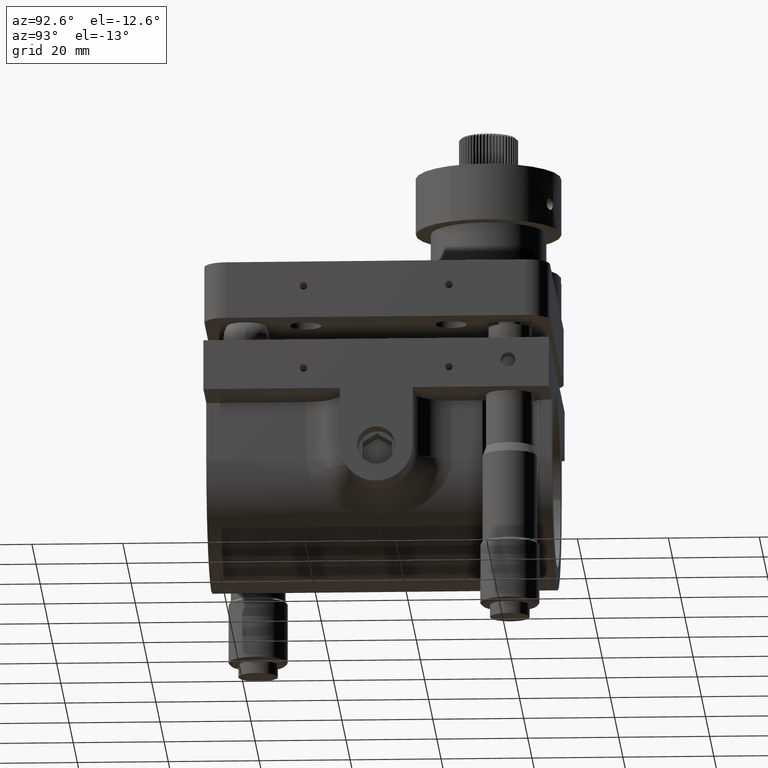
[diagram: clean part render]
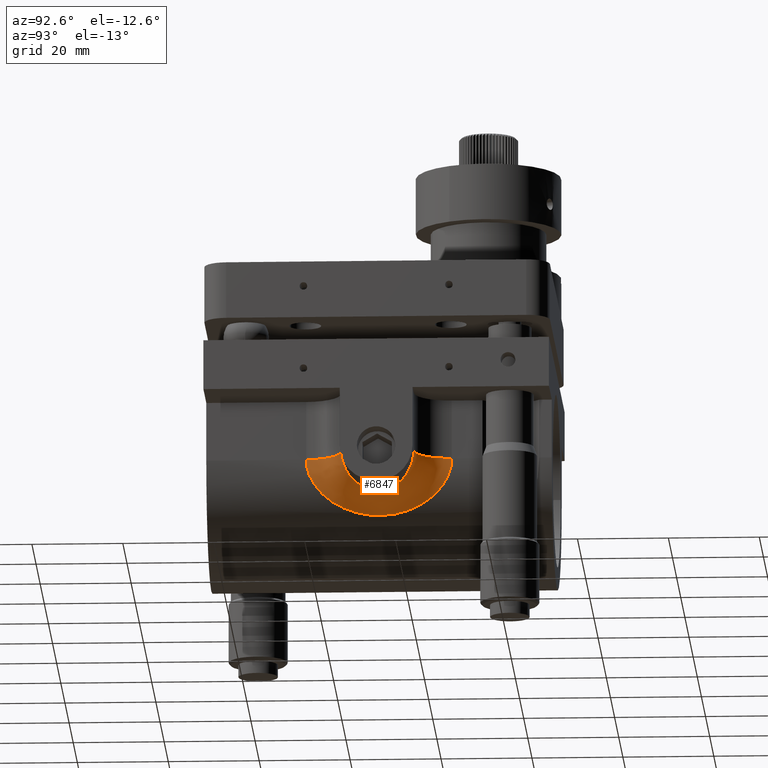
[diagram: same view with one face highlighted and labeled with its STEP entity id]
A machine part, auxiliary view. The second image highlights one B-rep face of the part: STEP entity #6847.
In plain terms, the highlighted face is a freeform B-spline surface patch.
Its self-contained STEP definition (entity closure, byte-faithful):
#44 = CARTESIAN_POINT ( 'NONE',  ( 24.01306153566631000, 264.8895944573932300, -4.057803100075076100 ) ) ;
#83 = CARTESIAN_POINT ( 'NONE',  ( 31.99999999984892800, 263.9999999999996600, -0.5310758604896721500 ) ) ;
#135 = CARTESIAN_POINT ( 'NONE',  ( 23.39751094401368200, 257.6723278714471800, -5.355671307065199100 ) ) ;
#148 = CARTESIAN_POINT ( 'NONE',  ( 23.73710706978753400, 256.7111317712161700, -3.654560114857070600 ) ) ;
#169 = CARTESIAN_POINT ( 'NONE',  ( 23.22836879194399600, 258.1702523871693400, -6.047281768696068500 ) ) ;
#221 = CARTESIAN_POINT ( 'NONE',  ( 23.36824752690086300, 275.7203402896857400, -7.150412890019928200 ) ) ;
#256 = CARTESIAN_POINT ( 'NONE',  ( 21.93414963906136000, 281.3523941967304200, -9.744194787622454600 ) ) ;
#272 = CARTESIAN_POINT ( 'NONE',  ( 23.89152367215780300, 287.7092060954161600, -2.322517795113065100 ) ) ;
#307 = CARTESIAN_POINT ( 'NONE',  ( 23.15517336995351300, 270.2295218657062000, -7.821391730683970400 ) ) ;
#339 = CARTESIAN_POINT ( 'NONE',  ( 27.83600470098490100, 270.6672727706435400, -7.892578517915820800 ) ) ;
#383 = CARTESIAN_POINT ( 'NONE',  ( 27.72840547609204600, 272.5353111724944600, -7.986540797949269100 ) ) ;
#423 = CARTESIAN_POINT ( 'NONE',  ( 22.24303449834400200, 282.5689104746074300, -9.017728167632380800 ) ) ;
#500 = CARTESIAN_POINT ( 'NONE',  ( 30.97434325917999600, 278.9184293934748700, -4.025346995395656400 ) ) ;
#542 = CARTESIAN_POINT ( 'NONE',  ( 23.99012524142229800, 287.9737163725671400, -0.7945491189233868700 ) ) ;
#630 = DIRECTION ( 'NONE',  ( -8.673617379884027600E-016, 1.000000000000000000, -6.062030066289001700E-016 ) ) ;
#641 = CARTESIAN_POINT ( 'NONE',  ( 28.04738653929321000, 274.1741218061471300, -7.703540198099313200 ) ) ;
#645 = CARTESIAN_POINT ( 'NONE',  ( 23.99999999999998600, 288.0000000000001700, 2.775557561562891400E-014 ) ) ;
#681 = CARTESIAN_POINT ( 'NONE',  ( 27.78499366146377600, 270.8677657308708100, -7.938228935281368400 ) ) ;
#874 = CARTESIAN_POINT ( 'NONE',  ( 24.00000000000001800, 256.0000000000001100, -3.469446951953614200E-015 ) ) ;
#877 = CARTESIAN_POINT ( 'NONE',  ( 32.00000000000000000, 280.0000000000001100, -0.5644601517195988500 ) ) ;
#1043 = CARTESIAN_POINT ( 'NONE',  ( 24.00000000004790500, 263.9999999998819400, -0.2651520615603876800 ) ) ;
#1090 = CARTESIAN_POINT ( 'NONE',  ( 23.87449437080051600, 265.5563929645287500, -4.996765265713803700 ) ) ;
#1109 = CARTESIAN_POINT ( 'NONE',  ( 20.82029443025551200, 273.8645150984480100, -11.93879975488708000 ) ) ;
#1133 = CARTESIAN_POINT ( 'NONE',  ( 20.78471095832580300, 271.4554104214819300, -11.99982459952430600 ) ) ;
#1149 = CARTESIAN_POINT ( 'NONE',  ( 20.85579690312848200, 269.6594602145961500, -11.87605443853776800 ) ) ;
#1183 = CARTESIAN_POINT ( 'NONE',  ( 20.87643962248069900, 274.6579495570604200, -11.83986334097386700 ) ) ;
#1222 = CARTESIAN_POINT ( 'NONE',  ( 28.28925042678857300, 274.8507080150946500, -7.479487356280143800 ) ) ;
#1240 = CARTESIAN_POINT ( 'NONE',  ( 23.24011426593751000, 258.1345020776919300, -6.002504560184233300 ) ) ;
#1270 = CARTESIAN_POINT ( 'NONE',  ( 23.10185375536698900, 272.7141362480547900, -7.977481176401447300 ) ) ;
#1286 = CARTESIAN_POINT ( 'NONE',  ( 22.64108358480142200, 283.9863859595395200, -7.988647042950972800 ) ) ;
#1311 = CARTESIAN_POINT ( 'NONE',  ( 20.79630410702486300, 273.0706223449692500, -11.97981119675065500 ) ) ;
#1338 = AXIS2_PLACEMENT_3D ( 'NONE', #2273, #7999, #7085 ) ;
#1432 = CARTESIAN_POINT ( 'NONE',  ( 24.02482960835678900, 279.9974125008727700, -0.6841928028298522900 ) ) ;
#1467 = CARTESIAN_POINT ( 'NONE',  ( 31.19870383596076400, 279.1660282202789200, -3.565967365527042500 ) ) ;
#1513 = CARTESIAN_POINT ( 'NONE',  ( 31.73820363014373000, 279.7354316581272500, -2.109353261060477700 ) ) ;
#1572 = CARTESIAN_POINT ( 'NONE',  ( 31.55390774041700300, 264.4537530699146800, -2.706559038327079200 ) ) ;
#1616 = CARTESIAN_POINT ( 'NONE',  ( 28.64143817955809000, 275.6467944174199800, -7.139374761154702900 ) ) ;
#1655 = CARTESIAN_POINT ( 'NONE',  ( 31.71511189576581900, 264.2881895653761700, -2.198459045999029200 ) ) ;
#1694 = CARTESIAN_POINT ( 'NONE',  ( 29.38870760801278000, 276.9067824415049000, -6.337968074538084200 ) ) ;
#1896 = CARTESIAN_POINT ( 'NONE',  ( 24.09334941512101800, 264.3792917898709900, -2.913233650816920800 ) ) ;
#1938 = CARTESIAN_POINT ( 'NONE',  ( 23.68261980832469100, 256.8634739157651600, -3.908906645327918200 ) ) ;
#1972 = CARTESIAN_POINT ( 'NONE',  ( 24.01434919040731200, 263.9975204259754900, -0.5280935206666933500 ) ) ;
#2013 = CARTESIAN_POINT ( 'NONE',  ( 31.19668125854602200, 264.8361639357501600, -3.570447538006270800 ) ) ;
#2043 = ORIENTED_EDGE ( 'NONE', *, *, #9804, .F. ) ;
#2049 = CARTESIAN_POINT ( 'NONE',  ( 31.94724130099363500, 264.0523594740712400, -1.058263609392223100 ) ) ;
#2069 = CARTESIAN_POINT ( 'NONE',  ( 20.82938730690524700, 270.1215110125057200, -11.92215996556681800 ) ) ;
#2089 = VERTEX_POINT ( 'NONE', #11714 ) ;
#2092 = CARTESIAN_POINT ( 'NONE',  ( 23.15480610191964000, 273.7655545243453000, -7.822486620739467400 ) ) ;
#2107 = CARTESIAN_POINT ( 'NONE',  ( 22.33107253847760600, 261.1066820694016400, -8.797499187681477700 ) ) ;
#2138 = CARTESIAN_POINT ( 'NONE',  ( 22.03329574949419000, 262.2434214273743600, -9.518648959556715600 ) ) ;
#2153 = CARTESIAN_POINT ( 'NONE',  ( 22.43498506555276300, 260.7343846753095700, -8.530047507490298400 ) ) ;
#2176 = CARTESIAN_POINT ( 'NONE',  ( 28.85103606242369900, 267.9675836953728100, -6.928452755392934000 ) ) ;
#2192 = CARTESIAN_POINT ( 'NONE',  ( 23.93228816598228500, 256.1812141965259600, -1.859662173591592800 ) ) ;
#2224 = CARTESIAN_POINT ( 'NONE',  ( 21.01871096074083000, 276.2003279907097500, -11.58581743100195100 ) ) ;
#2256 = CARTESIAN_POINT ( 'NONE',  ( 27.78978735921052500, 273.0670102448432900, -7.933024713569509800 ) ) ;
#2273 = CARTESIAN_POINT ( 'NONE',  ( 32.00000000000004300, 256.0000000000001100, 6.938893903907228400E-015 ) ) ;
#2327 = VERTEX_POINT ( 'NONE', #645 ) ;
#2334 = CARTESIAN_POINT ( 'NONE',  ( 29.38113296090034500, 276.8834591705688700, -6.341865554342026800 ) ) ;
#2379 = CARTESIAN_POINT ( 'NONE',  ( 23.23075744428251400, 285.8368587868791300, -6.038020493047207000 ) ) ;
#2407 = CARTESIAN_POINT ( 'NONE',  ( 24.09354518503135300, 279.6225563993193100, -2.908073503047946300 ) ) ;
#2456 = CARTESIAN_POINT ( 'NONE',  ( 31.99999999999999300, 279.9999999999996600, 2.361385232414906200E-014 ) ) ;
#2476 = CARTESIAN_POINT ( 'NONE',  ( 28.64751463193253800, 268.3412423607929300, -7.133316079932663800 ) ) ;
#2518 = CARTESIAN_POINT ( 'NONE',  ( 30.93564128858527000, 265.1211053857870800, -4.114896119312547300 ) ) ;
#2640 = CARTESIAN_POINT ( 'NONE',  ( 30.80861297183772200, 278.7312110858985100, -4.330572258948909500 ) ) ;
#2678 = CARTESIAN_POINT ( 'NONE',  ( 31.93998354473501100, 279.9404402469342000, -1.119956159992267600 ) ) ;
#2738 = EDGE_LOOP ( 'NONE', ( #9348, #2043, #10229, #11644 ) ) ;
#2820 = CARTESIAN_POINT ( 'NONE',  ( 23.96043097576704600, 256.1047189478866200, -1.587395414129123500 ) ) ;
#2944 = CARTESIAN_POINT ( 'NONE',  ( 30.47551567229763900, 265.6551259118015800, -4.900091018967365200 ) ) ;
#2989 = CARTESIAN_POINT ( 'NONE',  ( 22.94726860069829400, 259.0298456523099200, -7.037923490487095500 ) ) ;
#3019 = CARTESIAN_POINT ( 'NONE',  ( 23.24631230787857200, 274.7699366911851900, -7.544345886201465000 ) ) ;
#3032 = CARTESIAN_POINT ( 'NONE',  ( 21.56685286066107900, 279.6848604920894000, -10.53149854943045800 ) ) ;
#3061 = CARTESIAN_POINT ( 'NONE',  ( 20.87700352565649800, 269.3345455413037800, -11.83886777676556100 ) ) ;
#3080 = CARTESIAN_POINT ( 'NONE',  ( 23.89213176109895200, 256.2891449075322000, -2.316798508546536800 ) ) ;
#3106 = CARTESIAN_POINT ( 'NONE',  ( 28.01204758748285100, 269.8951978038252800, -7.735996240453708600 ) ) ;
#3151 = CARTESIAN_POINT ( 'NONE',  ( 27.71294794443535300, 271.7277052107482400, -7.999883066356368900 ) ) ;
#3192 = CARTESIAN_POINT ( 'NONE',  ( 21.93221195445058700, 262.6557561592238700, -9.748527173897235400 ) ) ;
#3325 = CARTESIAN_POINT ( 'NONE',  ( 24.09931095238816200, 279.8579607770693100, -2.058106632504479400 ) ) ;
#3333 = CIRCLE ( 'NONE', #1338, 8.000000000000000000 ) ;
#3348 = VERTEX_POINT ( 'NONE', #874 ) ;
#3358 = CARTESIAN_POINT ( 'NONE',  ( 24.09969818701979000, 279.6962125985022600, -2.684894069998884800 ) ) ;
#3405 = CARTESIAN_POINT ( 'NONE',  ( 23.99999999999999300, 287.9999999999996600, 4.103547148329639300E-014 ) ) ;
#3545 = CARTESIAN_POINT ( 'NONE',  ( 31.54276882018678700, 279.5327144170430000, -2.707508387027104800 ) ) ;
#3874 = CARTESIAN_POINT ( 'NONE',  ( 24.05674968382122700, 264.0211394929805200, -1.150973996345188800 ) ) ;
#3923 = CARTESIAN_POINT ( 'NONE',  ( 23.98607052645390100, 256.0370552086255300, -0.9387123944440687300 ) ) ;
#3949 = CARTESIAN_POINT ( 'NONE',  ( 31.79132143330153700, 264.2106394402802000, -1.843119643369125500 ) ) ;
#3967 = CARTESIAN_POINT ( 'NONE',  ( 20.95815792870768500, 275.7035017454211900, -11.69509367150036300 ) ) ;
#3996 = CARTESIAN_POINT ( 'NONE',  ( 29.37772766623309900, 267.1217107137182400, -6.345765973052112800 ) ) ;
#4007 = CARTESIAN_POINT ( 'NONE',  ( 23.23899515102580800, 285.8621843902740200, -6.006904543444972200 ) ) ;
#4036 = CARTESIAN_POINT ( 'NONE',  ( 23.21175846541278900, 274.4404682968469200, -7.650541268123543400 ) ) ;
#4051 = CARTESIAN_POINT ( 'NONE',  ( 23.04514151846533600, 285.2743856784272200, -6.712320777299497700 ) ) ;
#4079 = CARTESIAN_POINT ( 'NONE',  ( 21.00903569077650000, 267.7903956076182800, -11.60399436089688200 ) ) ;
#4123 = CARTESIAN_POINT ( 'NONE',  ( 23.32440172959641700, 275.4090491831640900, -7.294842462984228800 ) ) ;
#4159 = CARTESIAN_POINT ( 'NONE',  ( 28.60603826504466700, 268.4220479015122000, -7.174705562205621900 ) ) ;
#4234 = CARTESIAN_POINT ( 'NONE',  ( 23.87607391892513700, 278.4510818130529500, -4.987649408290801400 ) ) ;
#4276 = CARTESIAN_POINT ( 'NONE',  ( 23.80365272231025000, 287.4708633167314200, -3.164029891631595900 ) ) ;
#4317 = CARTESIAN_POINT ( 'NONE',  ( 31.93433724182622100, 279.9341663477634400, -1.058059318255277100 ) ) ;
#4419 = CARTESIAN_POINT ( 'NONE',  ( 30.44759860380569100, 265.6889160349382500, -4.941839776047101100 ) ) ;
#4457 = CARTESIAN_POINT ( 'NONE',  ( 29.39682094881550300, 267.0933614464090100, -6.323426681828725500 ) ) ;
#4498 = CARTESIAN_POINT ( 'NONE',  ( 31.25841896500154600, 279.2305374376714400, -3.433286449169341100 ) ) ;
#4743 = CARTESIAN_POINT ( 'NONE',  ( 24.09958650345574000, 264.3056134649929700, -2.690821824925663000 ) ) ;
#4757 = CARTESIAN_POINT ( 'NONE',  ( 23.99999999999998600, 288.0000000000001700, 2.775557561562891400E-014 ) ) ;
#4774 = CARTESIAN_POINT ( 'NONE',  ( 23.79506251477541300, 256.5531516966662500, -3.152940225483492400 ) ) ;
#4864 = CARTESIAN_POINT ( 'NONE',  ( 22.65443840454386800, 259.9644148154758900, -7.944729093679075800 ) ) ;
#4880 = AXIS2_PLACEMENT_3D ( 'NONE', #11075, #11123, #630 ) ;
#4884 = CARTESIAN_POINT ( 'NONE',  ( 21.56867509791299800, 264.3060928981834600, -10.52776395958343700 ) ) ;
#4925 = CARTESIAN_POINT ( 'NONE',  ( 23.59228402011761000, 286.8896354533592900, -4.475542467231729700 ) ) ;
#4948 = CARTESIAN_POINT ( 'NONE',  ( 21.21693781996400200, 277.7014160300919300, -11.21923103420602700 ) ) ;
#4967 = CARTESIAN_POINT ( 'NONE',  ( 21.25693897792746200, 266.0423952451877200, -11.14279263346896300 ) ) ;
#4998 = CARTESIAN_POINT ( 'NONE',  ( 27.95283263950109300, 273.8455519720894800, -7.788670280641809100 ) ) ;
#5015 = CARTESIAN_POINT ( 'NONE',  ( 21.05994865254435700, 276.6096893078760100, -11.51328313927563900 ) ) ;
#5045 = CARTESIAN_POINT ( 'NONE',  ( 27.71267962317582300, 272.2653798861037400, -8.000115439397122300 ) ) ;
#5086 = CARTESIAN_POINT ( 'NONE',  ( 22.23891570441772500, 261.4465938570604600, -9.027814125897336300 ) ) ;
#5130 = CARTESIAN_POINT ( 'NONE',  ( 21.45452869902088700, 264.8440958031139300, -10.76205834326388600 ) ) ;
#5174 = CARTESIAN_POINT ( 'NONE',  ( 31.58636159179414800, 279.5799801787462700, -2.610574743720004900 ) ) ;
#5218 = CARTESIAN_POINT ( 'NONE',  ( 29.79625811592886100, 277.4756322061374500, -5.838107134425792200 ) ) ;
#5257 = CARTESIAN_POINT ( 'NONE',  ( 31.98683365522646200, 279.9868581862460800, -0.5296994126121926700 ) ) ;
#5283 = FACE_OUTER_BOUND ( 'NONE', #2738, .T. ) ;
#5293 = CARTESIAN_POINT ( 'NONE',  ( 23.68977119407404100, 287.1599603574338200, -3.915862115606935300 ) ) ;
#5341 = CARTESIAN_POINT ( 'NONE',  ( 29.65737933087665500, 277.2844552373401300, -6.011818778415665100 ) ) ;
#5357 = CARTESIAN_POINT ( 'NONE',  ( 27.97118899987810200, 273.9146885418247700, -7.772209696498814300 ) ) ;
#5433 = CARTESIAN_POINT ( 'NONE',  ( 30.92790235621257400, 278.8663088460476700, -4.113355008426502500 ) ) ;
#5709 = CARTESIAN_POINT ( 'NONE',  ( 24.00000000000001400, 256.0000000002650600, -0.7966137907039755300 ) ) ;
#5750 = CARTESIAN_POINT ( 'NONE',  ( 23.47586465035556800, 257.4468549987639100, -5.001967601043604700 ) ) ;
#5799 = CARTESIAN_POINT ( 'NONE',  ( 24.09938305790391800, 264.1426202954930900, -2.061059460049778500 ) ) ;
#5846 = CARTESIAN_POINT ( 'NONE',  ( 21.48529042187807600, 264.7315026931407300, -10.69635384341288100 ) ) ;
#5875 = CARTESIAN_POINT ( 'NONE',  ( 30.97115838939754100, 265.0851261935577600, -4.031521179167915700 ) ) ;
#5890 = CARTESIAN_POINT ( 'NONE',  ( 21.06139826051904900, 267.3788793517561500, -11.51063129663424600 ) ) ;
#5919 = CARTESIAN_POINT ( 'NONE',  ( 23.50747700754483600, 276.6158556329756900, -6.667376952783242500 ) ) ;
#5935 = CARTESIAN_POINT ( 'NONE',  ( 20.78436672285617000, 272.9272718083400900, -12.00042083297119800 ) ) ;
#5968 = CARTESIAN_POINT ( 'NONE',  ( 23.74749151427093700, 277.8386928951949800, -5.661123984304969900 ) ) ;
#5982 = CARTESIAN_POINT ( 'NONE',  ( 22.74450388769486200, 259.6811379130190300, -7.667923199483510600 ) ) ;
#6006 = CARTESIAN_POINT ( 'NONE',  ( 23.74660131119711100, 266.1656442877487600, -5.665287846620654700 ) ) ;
#6023 = CARTESIAN_POINT ( 'NONE',  ( 22.02594779621886200, 262.2538879861214700, -9.547187773488914800 ) ) ;
#6050 = CARTESIAN_POINT ( 'NONE',  ( 23.09407827956567900, 271.6369385795422300, -7.999805109658353800 ) ) ;
#6095 = CARTESIAN_POINT ( 'NONE',  ( 23.10213830176234100, 271.2767929055887100, -7.976657693911969100 ) ) ;
#6215 = CARTESIAN_POINT ( 'NONE',  ( 24.05864470630784500, 279.3548573936268400, -3.583698562634076700 ) ) ;
#6253 = CARTESIAN_POINT ( 'NONE',  ( 23.95075293136721200, 287.8683326954525800, -1.587088977377802500 ) ) ;
#6268 = CARTESIAN_POINT ( 'NONE',  ( 28.22021083123664200, 269.2960106036412100, -7.547128401124598300 ) ) ;
#6293 = CARTESIAN_POINT ( 'NONE',  ( 23.14000598072142600, 285.5645503702590400, -6.375998512637721700 ) ) ;
#6313 = CARTESIAN_POINT ( 'NONE',  ( 30.18273465736074400, 277.9877892463674700, -5.328030840310133500 ) ) ;
#6408 = CARTESIAN_POINT ( 'NONE',  ( 29.65932122394668700, 266.7131611252357300, -6.009173121847095600 ) ) ;
#6443 = EDGE_CURVE ( 'NONE', #2327, #3348, #9016, .T. ) ;
#6444 = CARTESIAN_POINT ( 'NONE',  ( 30.18851262883177000, 266.0048849027319900, -5.319970347337950000 ) ) ;
#6539 = EDGE_CURVE ( 'NONE', #2089, #3348, #3333, .T. ) ;
#6574 = CARTESIAN_POINT ( 'NONE',  ( 31.70159976370443600, 279.6976020403965900, -2.195292914905103000 ) ) ;
#6601 = CIRCLE ( 'NONE', #4880, 8.000000000000007100 ) ;
#6693 = CARTESIAN_POINT ( 'NONE',  ( 24.08684592691010500, 264.0752204956868900, -1.675958271594884900 ) ) ;
#6779 = CARTESIAN_POINT ( 'NONE',  ( 31.57682641127440700, 264.4317369579491100, -2.605937763546591200 ) ) ;
#6822 = CARTESIAN_POINT ( 'NONE',  ( 23.91281611915335900, 265.3756010500121100, -4.763303657636805100 ) ) ;
#6838 = CARTESIAN_POINT ( 'NONE',  ( 23.93210722037643400, 287.8183000323163000, -1.862290396152699100 ) ) ;
#6847 = ADVANCED_FACE ( 'NONE', ( #5283 ), #10937, .F. ) ;
#6867 = CARTESIAN_POINT ( 'NONE',  ( 30.85052633316928400, 265.2209304034963100, -4.255736740339660400 ) ) ;
#6900 = CARTESIAN_POINT ( 'NONE',  ( 20.96462447970758400, 275.6911039441825400, -11.68300542107485600 ) ) ;
#6918 = CARTESIAN_POINT ( 'NONE',  ( 23.98608576425294800, 287.9629863946827900, -0.9389202506594460700 ) ) ;
#6950 = CARTESIAN_POINT ( 'NONE',  ( 27.72897534445238700, 271.4578703290698100, -7.986046542617267500 ) ) ;
#6963 = CARTESIAN_POINT ( 'NONE',  ( 20.78473305787578000, 271.5219162580900700, -11.99978632195134400 ) ) ;
#6988 = CARTESIAN_POINT ( 'NONE',  ( 29.24294927238510800, 267.3278780796171100, -6.499018115874418000 ) ) ;
#7005 = CARTESIAN_POINT ( 'NONE',  ( 23.33270758837644000, 286.1385534077829200, -5.633945598849275700 ) ) ;
#7035 = CARTESIAN_POINT ( 'NONE',  ( 23.24061855268528400, 269.2186848956895900, -7.563381262608350800 ) ) ;
#7069 = CARTESIAN_POINT ( 'NONE',  ( 24.00336861856485600, 280.0001606535216200, -0.2646533753086481300 ) ) ;
#7085 = DIRECTION ( 'NONE',  ( -1.000000000000000000, 0.0000000000000000000, -4.439349927514523600E-016 ) ) ;
#7114 = CARTESIAN_POINT ( 'NONE',  ( 24.01347136408310900, 279.1125696097770400, -4.053607121693602300 ) ) ;
#7150 = CARTESIAN_POINT ( 'NONE',  ( 24.08041544272003200, 279.9589534574046800, -1.479946462750216100 ) ) ;
#7190 = CARTESIAN_POINT ( 'NONE',  ( 22.34719358679749500, 282.9512644122369800, -8.757160701553159400 ) ) ;
#7230 = CARTESIAN_POINT ( 'NONE',  ( 24.00000000001102800, 279.9999999999408300, -0.1325237706759394600 ) ) ;
#7336 = CARTESIAN_POINT ( 'NONE',  ( 28.22312206587029900, 274.6830928968426000, -7.541375850506987900 ) ) ;
#7420 = CARTESIAN_POINT ( 'NONE',  ( 29.26729492260657800, 267.2902857865556700, -6.471456769117646800 ) ) ;
#7498 = CARTESIAN_POINT ( 'NONE',  ( 31.77093801687781700, 279.7685657713944400, -1.930183704825650500 ) ) ;
#7619 = CARTESIAN_POINT ( 'NONE',  ( 31.72675001952572800, 264.2765758482661900, -2.101960150327689900 ) ) ;
#7658 = CARTESIAN_POINT ( 'NONE',  ( 22.34391774224698000, 261.0605672879694900, -8.765552742240871000 ) ) ;
#7698 = CARTESIAN_POINT ( 'NONE',  ( 24.00000000000006800, 263.9999999999996600, 3.218205205131693300E-014 ) ) ;
#7740 = CARTESIAN_POINT ( 'NONE',  ( 23.13789475005152600, 258.4418608070991500, -6.383605110507999400 ) ) ;
#7743 = CARTESIAN_POINT ( 'NONE',  ( 32.00000000000002800, 280.0000000000001100, 3.469446951953614200E-015 ) ) ;
#7778 = CARTESIAN_POINT ( 'NONE',  ( 24.10262753473929500, 264.1870391869550200, -2.264061514924169800 ) ) ;
#7814 = CARTESIAN_POINT ( 'NONE',  ( 20.79673150829613700, 270.9157406581744000, -11.97906981375684200 ) ) ;
#7833 = CARTESIAN_POINT ( 'NONE',  ( 21.74273432714224100, 280.5205071990555400, -10.16342009312670800 ) ) ;
#7858 = CARTESIAN_POINT ( 'NONE',  ( 23.60805865303971300, 277.1462729523096900, -6.286062265493806800 ) ) ;
#7872 = CARTESIAN_POINT ( 'NONE',  ( 22.02755325433048100, 281.7337548801294800, -9.531155924887624300 ) ) ;
#7905 = CARTESIAN_POINT ( 'NONE',  ( 27.79055608194233400, 270.9282546907626900, -7.932351855098225700 ) ) ;
#7919 = CARTESIAN_POINT ( 'NONE',  ( 22.12771555490741400, 282.1287391434864800, -9.297146290553147500 ) ) ;
#7941 = CARTESIAN_POINT ( 'NONE',  ( 23.13230407065713100, 273.4194943640116500, -7.888587570635706000 ) ) ;
#7986 = CARTESIAN_POINT ( 'NONE',  ( 21.13676313758324500, 266.7897755249736600, -11.37347552626853200 ) ) ;
#7999 = DIRECTION ( 'NONE',  ( -4.234267452369505000E-016, 1.320038492901061600E-016, 1.000000000000000000 ) ) ;
#8030 = CARTESIAN_POINT ( 'NONE',  ( 23.79253874360926300, 278.0541004131911200, -5.441526113009318000 ) ) ;
#8072 = CARTESIAN_POINT ( 'NONE',  ( 24.10258339800310500, 279.8138597565306900, -2.260158448351148300 ) ) ;
#8105 = CARTESIAN_POINT ( 'NONE',  ( 22.85822203977874900, 284.6948541009283500, -7.345380893058052000 ) ) ;
#8154 = CARTESIAN_POINT ( 'NONE',  ( 23.47698376228093400, 286.5563431147787100, -4.996603072048389800 ) ) ;
#8192 = CARTESIAN_POINT ( 'NONE',  ( 23.99999999999999300, 287.9999999999113800, -0.3976083438964711500 ) ) ;
#8210 = CARTESIAN_POINT ( 'NONE',  ( 27.73008967603229300, 272.5617806022069700, -7.985089749943925100 ) ) ;
#8296 = CARTESIAN_POINT ( 'NONE',  ( 32.00000000000008500, 264.0000000000001100, -0.5652008208954130100 ) ) ;
#8337 = CARTESIAN_POINT ( 'NONE',  ( 31.45342977371989300, 279.4389544777648100, -2.954671514290475400 ) ) ;
#8380 = CARTESIAN_POINT ( 'NONE',  ( 27.79685213396084700, 273.1146193180356900, -7.926845497140520000 ) ) ;
#8466 = CARTESIAN_POINT ( 'NONE',  ( 32.00000000000002800, 280.0000000000001100, 3.469446951953614200E-015 ) ) ;
#8575 = CARTESIAN_POINT ( 'NONE',  ( 29.79189032318574700, 266.5302836439604400, -5.843701828230838800 ) ) ;
#8622 = CARTESIAN_POINT ( 'NONE',  ( 30.20591787234559400, 265.9822074077860600, -5.296486062312196100 ) ) ;
#8761 = CARTESIAN_POINT ( 'NONE',  ( 22.94519456694061800, 284.9636322700388300, -7.044667000855476100 ) ) ;
#8792 = CARTESIAN_POINT ( 'NONE',  ( 28.02494794781041800, 274.1001639953586800, -7.723878287365922200 ) ) ;
#8809 = CARTESIAN_POINT ( 'NONE',  ( 24.00000000000001800, 256.0000000000002300, -0.4724327336706920500 ) ) ;
#8832 = CARTESIAN_POINT ( 'NONE',  ( 23.32208548555356100, 268.5768725832749600, -7.310485437108769500 ) ) ;
#8845 = CARTESIAN_POINT ( 'NONE',  ( 23.04702588070502500, 258.7198220086615400, -6.705786318022444600 ) ) ;
#8876 = CARTESIAN_POINT ( 'NONE',  ( 20.84234051945206500, 274.1340204897069300, -11.89953707052750600 ) ) ;
#8918 = CARTESIAN_POINT ( 'NONE',  ( 28.19294312441179400, 274.6022629474076100, -7.569492199480278800 ) ) ;
#8966 = CARTESIAN_POINT ( 'NONE',  ( 27.83525283008328800, 273.3289747785316900, -7.893242227390677700 ) ) ;
#8995 = CARTESIAN_POINT ( 'NONE',  ( 30.20835112895186500, 278.0207403216508100, -5.292906371640334000 ) ) ;
#9016 = B_SPLINE_CURVE_WITH_KNOTS ( 'NONE', 3,
 ( #4757, #9535, #6918, #6838, #272, #9803, #4925, #7005, #4007, #4051, #8761, #1286, #10764, #7919, #7872, #9723, #7833, #3032, #11689, #11779, #9849, #5015, #3967, #1109, #5935, #6963, #11648, #2069, #1149, #9683, #5890, #4967, #10812, #5846, #4884, #11733, #6023, #2107, #2153, #11608, #5982, #2989, #8845, #1240, #9760, #10685, #148, #3080, #2192, #3923, #8809, #10728 ),
 .UNSPECIFIED., .F., .F.,
 ( 4, 2, 2, 2, 2, 2, 2, 2, 2, 2, 2, 2, 2, 2, 2, 2, 2, 2, 2, 2, 2, 2, 2, 2, 2, 4 ),
 ( 0.0000000000000000000, 0.001403609548190319200, 0.002807219096380638400, 0.005614438192761279400, 0.007018047740951555700, 0.008421657289141832800, 0.01122887638552250300, 0.01263248593371277100, 0.01403609548190303700, 0.01543970503009330300, 0.01684331457828356800, 0.01965053367466410400, 0.02245775277104463200, 0.02386136231923482000, 0.02526497186742500100, 0.02807219096380536600, 0.02947580051199563300, 0.03087941006018589400, 0.03368662915656656800, 0.03509023870475690100, 0.03649384825294724200, 0.03789745780113756800, 0.03930106734932790900, 0.04210828644570848600, 0.04351189599389874300, 0.04491550554208900700 ),
 .UNSPECIFIED. ) ;
#9069 = CARTESIAN_POINT ( 'NONE',  ( 23.91394547084131300, 278.6297891090424100, -4.755985890888671200 ) ) ;
#9121 = CARTESIAN_POINT ( 'NONE',  ( 30.85334130738383300, 278.7822751851919600, -4.250665675100086600 ) ) ;
#9150 = CARTESIAN_POINT ( 'NONE',  ( 23.99999999999999300, 279.9999999999996600, 2.160886502823224100E-014 ) ) ;
#9171 = B_SPLINE_CURVE_WITH_KNOTS ( 'NONE', 3,
 ( #10182, #8296, #11090, #1655, #1572, #11052, #2518, #4419, #6444, #10221, #6408, #4457, #7420, #11134, #2476, #6268, #10265, #681, #11220, #12120, #8210, #8380, #12202, #5357, #641, #7336, #12075, #1616, #9220, #1694, #11181, #6313, #9303, #2640, #5433, #12160, #4498, #8337, #3545, #6574, #7498, #2678, #877, #8466 ),
 .UNSPECIFIED., .F., .F.,
 ( 4, 2, 2, 2, 2, 2, 2, 2, 2, 2, 2, 2, 2, 2, 2, 2, 2, 2, 2, 2, 2, 4 ),
 ( 2.936407111544926300E-018, 0.001675885097242122100, 0.003351770194484241200, 0.005027655291726364200, 0.006703540388968485900, 0.007541482937589548900, 0.008379425486210611100, 0.01005531058345261400, 0.01173119568069461900, 0.01340708077793662000, 0.01424502332655754000, 0.01508296587517845900, 0.01592090842379937900, 0.01675885097242029600, 0.01843473606966199200, 0.02011062116690368400, 0.02178650626414537600, 0.02262444881276622100, 0.02346239136138706200, 0.02430033391000790600, 0.02513827645862874700, 0.02681416155587040100 ),
 .UNSPECIFIED. ) ;
#9220 = CARTESIAN_POINT ( 'NONE',  ( 28.88187242712634300, 276.0857213482011000, -6.895885317127946800 ) ) ;
#9303 = CARTESIAN_POINT ( 'NONE',  ( 30.44164250549314200, 278.3039334618373500, -4.951025954318431800 ) ) ;
#9348 = ORIENTED_EDGE ( 'NONE', *, *, #9428, .T. ) ;
#9428 = EDGE_CURVE ( 'NONE', #2327, #10018, #6601, .T. ) ;
#9535 = CARTESIAN_POINT ( 'NONE',  ( 23.99999999999998200, 288.0000000000001700, -0.4721362264930204500 ) ) ;
#9584 = CARTESIAN_POINT ( 'NONE',  ( 31.30115286729491000, 264.7234274993916800, -3.334645067371755400 ) ) ;
#9624 = CARTESIAN_POINT ( 'NONE',  ( 23.84349107496524700, 256.4212788806889300, -2.764679465033280400 ) ) ;
#9669 = CARTESIAN_POINT ( 'NONE',  ( 24.05831098608288000, 264.6470119082749200, -3.587428897274846900 ) ) ;
#9683 = CARTESIAN_POINT ( 'NONE',  ( 20.95953012369901500, 268.2832200928576200, -11.69264003381525500 ) ) ;
#9709 = CARTESIAN_POINT ( 'NONE',  ( 31.49122243540254100, 264.5212141844331200, -2.852389841314145500 ) ) ;
#9723 = CARTESIAN_POINT ( 'NONE',  ( 21.83526937403405200, 280.9303977566401000, -9.963786780148209800 ) ) ;
#9746 = CARTESIAN_POINT ( 'NONE',  ( 23.79141825822846100, 265.9512567273652100, -5.447069574120656700 ) ) ;
#9760 = CARTESIAN_POINT ( 'NONE',  ( 23.33360640255597600, 257.8588291219043100, -5.630080335260304400 ) ) ;
#9788 = CARTESIAN_POINT ( 'NONE',  ( 28.85182140303764700, 276.0339788010649600, -6.927705593559769800 ) ) ;
#9803 = CARTESIAN_POINT ( 'NONE',  ( 23.73731014674123300, 287.2894084371910100, -3.651859271794531300 ) ) ;
#9804 = EDGE_CURVE ( 'NONE', #2089, #10018, #9171, .T. ) ;
#9833 = CARTESIAN_POINT ( 'NONE',  ( 21.45491531249775000, 279.1577047789269800, -10.76127272928225200 ) ) ;
#9849 = CARTESIAN_POINT ( 'NONE',  ( 21.25553116753565400, 277.9487320249601800, -11.14547783897824700 ) ) ;
#9869 = CARTESIAN_POINT ( 'NONE',  ( 21.14470734342582900, 277.2045258948235200, -11.35423829926734600 ) ) ;
#9909 = CARTESIAN_POINT ( 'NONE',  ( 23.60770530995552700, 266.8556479704409400, -6.287299782521073700 ) ) ;
#10018 = VERTEX_POINT ( 'NONE', #7743 ) ;
#10029 = CARTESIAN_POINT ( 'NONE',  ( 23.92111691283526300, 287.7888636716975300, -1.984038220987240700 ) ) ;
#10073 = CARTESIAN_POINT ( 'NONE',  ( 31.89482255024865500, 279.8944318359677400, -1.322692147338462100 ) ) ;
#10119 = CARTESIAN_POINT ( 'NONE',  ( 30.47762938686113900, 278.3474270503389200, -4.896920595355495300 ) ) ;
#10182 = CARTESIAN_POINT ( 'NONE',  ( 32.00000000000010700, 264.0000000000001100, 3.816391647148975600E-014 ) ) ;
#10221 = CARTESIAN_POINT ( 'NONE',  ( 29.79276496292736500, 266.5293127607116600, -5.842298649624304100 ) ) ;
#10229 = ORIENTED_EDGE ( 'NONE', *, *, #6539, .T. ) ;
#10265 = CARTESIAN_POINT ( 'NONE',  ( 28.03964772541919400, 269.8009212406788600, -7.711127393541900700 ) ) ;
#10496 = CARTESIAN_POINT ( 'NONE',  ( 24.04529594397990900, 264.0125617264208700, -0.9888170286587052400 ) ) ;
#10543 = CARTESIAN_POINT ( 'NONE',  ( 29.65188760564944600, 266.7232969284987100, -6.018542750583923100 ) ) ;
#10629 = CARTESIAN_POINT ( 'NONE',  ( 22.85663675387410600, 259.3102518233913000, -7.350136528454023700 ) ) ;
#10685 = CARTESIAN_POINT ( 'NONE',  ( 23.59176459337356100, 257.1119011472968600, -4.477567720804074700 ) ) ;
#10714 = CARTESIAN_POINT ( 'NONE',  ( 23.09394411895736700, 272.3538380792952600, -8.000192398055981300 ) ) ;
#10728 = CARTESIAN_POINT ( 'NONE',  ( 24.00000000000001800, 256.0000000000001100, -3.469446951953614200E-015 ) ) ;
#10750 = CARTESIAN_POINT ( 'NONE',  ( 21.63827704649426300, 263.9351673907676200, -10.39267913291818400 ) ) ;
#10764 = CARTESIAN_POINT ( 'NONE',  ( 22.43269708726392500, 283.2754023984309700, -8.547806777086467600 ) ) ;
#10795 = CARTESIAN_POINT ( 'NONE',  ( 23.13268375183397700, 270.5742505201411600, -7.887471799046599200 ) ) ;
#10812 = CARTESIAN_POINT ( 'NONE',  ( 21.32949455536980600, 265.5990138476771600, -11.00374263913825400 ) ) ;
#10834 = CARTESIAN_POINT ( 'NONE',  ( 28.60655374965719100, 275.5788523893655200, -7.174181819235932300 ) ) ;
#10873 = CARTESIAN_POINT ( 'NONE',  ( 23.50727171377668500, 267.3851594814519800, -6.668169977250297400 ) ) ;
#10910 = CARTESIAN_POINT ( 'NONE',  ( 31.30264501652686700, 279.2781715573744300, -3.331068714707910800 ) ) ;
#10937 =( BOUNDED_SURFACE ( )  B_SPLINE_SURFACE ( 3, 2, ( 
 ( #11513, #7698, #11467 ),
 ( #83, #1043, #5709 ),
 ( #2049, #1972, #2820 ),
 ( #3949, #10496, #9624 ),
 ( #7619, #3874, #4774 ),
 ( #6779, #12445, #1938 ),
 ( #9709, #6693, #11630 ),
 ( #9584, #5799, #5750 ),
 ( #2013, #7778, #135 ),
 ( #5875, #4743, #169 ),
 ( #6867, #1896, #7740 ),
 ( #2944, #9669, #10629 ),
 ( #8622, #44, #4864 ),
 ( #8575, #6822, #7658 ),
 ( #10543, #1090, #5086 ),
 ( #3996, #9746, #2138 ),
 ( #6988, #6006, #3192 ),
 ( #2176, #9909, #10750 ),
 ( #4159, #10873, #5130 ),
 ( #11808, #8832, #7986 ),
 ( #3106, #7035, #4079 ),
 ( #339, #307, #3061 ),
 ( #7905, #10795, #11847 ),
 ( #6950, #6095, #7814 ),
 ( #3151, #6050, #1133 ),
 ( #5045, #10714, #11676 ),
 ( #383, #1270, #1311 ),
 ( #2256, #7941, #8876 ),
 ( #8966, #2092, #1183 ),
 ( #4998, #4036, #6900 ),
 ( #8792, #3019, #2224 ),
 ( #8918, #4123, #9869 ),
 ( #1222, #221, #4948 ),
 ( #10834, #5919, #9833 ),
 ( #9788, #7858, #11764 ),
 ( #11718, #5968, #256 ),
 ( #2334, #8030, #11974 ),
 ( #5341, #4234, #423 ),
 ( #5218, #9069, #7190 ),
 ( #8995, #7114, #11034 ),
 ( #10119, #6215, #8105 ),
 ( #9121, #2407, #6293 ),
 ( #500, #3358, #2379 ),
 ( #1467, #8072, #10951 ),
 ( #10910, #3325, #8154 ),
 ( #5174, #7150, #5293 ),
 ( #1513, #10996, #4276 ),
 ( #10073, #1432, #10029 ),
 ( #4317, #12016, #6253 ),
 ( #5257, #7069, #542 ),
 ( #11890, #7230, #8192 ),
 ( #2456, #9150, #3405 ) ),
 .UNSPECIFIED., .F., .F., .T. ) 
 B_SPLINE_SURFACE_WITH_KNOTS ( ( 4, 2, 2, 2, 2, 2, 2, 2, 2, 2, 2, 2, 2, 2, 2, 2, 2, 2, 2, 2, 2, 2, 2, 2, 2, 4 ),
 ( 3, 3 ),
 ( 0.02761761006395067500, 0.03079172662387446400, 0.03237878490383636100, 0.03396584318379825000, 0.03555290146376013900, 0.03713995974372203600, 0.04031407630364582100, 0.04190113458360771000, 0.04348819286356960700, 0.04666230942349339200, 0.04983642598341717800, 0.05142348426337907400, 0.05301054254334096300, 0.05459760082330285300, 0.05618465910326474900, 0.05777171738322664500, 0.05935877566318853400, 0.06253289222311231300, 0.06411995050307420200, 0.06570700878303610500, 0.06888112534295989800, 0.07046818362292178700, 0.07205524190288367700, 0.07522935846280745500, 0.07681641674276934500, 0.07840347502273124800 ),
 ( 0.0000000000000000000, 1.000000000000000000 ),
 .UNSPECIFIED. ) 
 GEOMETRIC_REPRESENTATION_ITEM ( )  RATIONAL_B_SPLINE_SURFACE ( (
 ( 1.000000000000000000, 0.7071067811865500200, 1.000000000000000000),
 ( 1.000000000000000000, 0.7071028731872509600, 1.000000000000000000),
 ( 1.000000000000000000, 0.7094545430957564000, 1.000000000000000000),
 ( 1.000000000000000000, 0.7162455210075368000, 1.000000000000000000),
 ( 1.000000000000000000, 0.7190417149398701200, 1.000000000000000000),
 ( 1.000000000000000000, 0.7254579588868191900, 1.000000000000000000),
 ( 1.000000000000000000, 0.7290887663685403600, 1.000000000000000000),
 ( 1.000000000000000000, 0.7370384143375143800, 1.000000000000000000),
 ( 1.000000000000000000, 0.7413573350892228600, 1.000000000000000000),
 ( 1.000000000000000000, 0.7505347212346451500, 1.000000000000000000),
 ( 1.000000000000000000, 0.7553749920945641600, 1.000000000000000000),
 ( 1.000000000000000000, 0.7701747035130975800, 1.000000000000000000),
 ( 1.000000000000000000, 0.7804904525148938000, 1.000000000000000000),
 ( 1.000000000000000000, 0.7957952048733119000, 1.000000000000000000),
 ( 1.000000000000000000, 0.8008838942067294500, 1.000000000000000000),
 ( 1.000000000000000000, 0.8106906103216952000, 1.000000000000000000),
 ( 1.000000000000000000, 0.8154322048115578700, 1.000000000000000000),
 ( 1.000000000000000000, 0.8290207529615640800, 1.000000000000000000),
 ( 1.000000000000000000, 0.8372370344432476000, 1.000000000000000000),
 ( 1.000000000000000000, 0.8511536048488987900, 1.000000000000000000),
 ( 1.000000000000000000, 0.8565881547123367400, 1.000000000000000000),
 ( 1.000000000000000000, 0.8621624232389640800, 1.000000000000000000),
 ( 1.000000000000000000, 0.8635901710846412000, 1.000000000000000000),
 ( 1.000000000000000000, 0.8655211066346122400, 1.000000000000000000),
 ( 1.000000000000000000, 0.8660211843050854600, 1.000000000000000000),
 ( 1.000000000000000000, 0.8660295693448182300, 1.000000000000000000),
 ( 1.000000000000000000, 0.8655389284499759300, 1.000000000000000000),
 ( 1.000000000000000000, 0.8636143213322911000, 1.000000000000000000),
 ( 1.000000000000000000, 0.8621861432494734000, 1.000000000000000000),
 ( 1.000000000000000000, 0.8584632389669687400, 1.000000000000000000),
 ( 1.000000000000000000, 0.8561683481040099900, 1.000000000000000000),
 ( 1.000000000000000000, 0.8507651011514855100, 1.000000000000000000),
 ( 1.000000000000000000, 0.8476425589515347300, 1.000000000000000000),
 ( 1.000000000000000000, 0.8372196776108024000, 1.000000000000000000),
 ( 1.000000000000000000, 0.8289949021149346500, 1.000000000000000000),
 ( 1.000000000000000000, 0.8153419288435651600, 1.000000000000000000),
 ( 1.000000000000000000, 0.8105704958735289200, 1.000000000000000000),
 ( 1.000000000000000000, 0.8006857063466704700, 1.000000000000000000),
 ( 1.000000000000000000, 0.7956352423088353100, 1.000000000000000000),
 ( 1.000000000000000000, 0.7803974537351702200, 1.000000000000000000),
 ( 1.000000000000000000, 0.7700934303925199800, 1.000000000000000000),
 ( 1.000000000000000000, 0.7552628110384670400, 1.000000000000000000),
 ( 1.000000000000000000, 0.7504061357994069600, 1.000000000000000000),
 ( 1.000000000000000000, 0.7412739856973440400, 1.000000000000000000),
 ( 1.000000000000000000, 0.7369763654084590100, 1.000000000000000000),
 ( 1.000000000000000000, 0.7251088508634913100, 1.000000000000000000),
 ( 1.000000000000000000, 0.7185587427713516800, 1.000000000000000000),
 ( 1.000000000000000000, 0.7117377457780760300, 1.000000000000000000),
 ( 1.000000000000000000, 0.7100012115559136700, 1.000000000000000000),
 ( 1.000000000000000000, 0.7076897172019064300, 1.000000000000000000),
 ( 1.000000000000000000, 0.7071065175668040900, 1.000000000000000000),
 ( 1.000000000000000000, 0.7071067811865475700, 1.000000000000000000) ) ) 
 REPRESENTATION_ITEM ( '' )  SURFACE ( )  );
#10951 = CARTESIAN_POINT ( 'NONE',  ( 23.39902787707305300, 286.3320564406291700, -5.348951048336849600 ) ) ;
#10996 = CARTESIAN_POINT ( 'NONE',  ( 24.05568406938538600, 279.9823356191127500, -1.143329850739254900 ) ) ;
#11034 = CARTESIAN_POINT ( 'NONE',  ( 22.65626334701219600, 284.0414806433784600, -7.939359557631515700 ) ) ;
#11052 = CARTESIAN_POINT ( 'NONE',  ( 31.16574622150716300, 264.8684150644487000, -3.662212564118885600 ) ) ;
#11075 = CARTESIAN_POINT ( 'NONE',  ( 32.00000000000006400, 288.0000000000001700, 3.122502256758252800E-014 ) ) ;
#11090 = CARTESIAN_POINT ( 'NONE',  ( 31.94035402065942400, 264.0591881220746600, -1.117474418458041400 ) ) ;
#11123 = DIRECTION ( 'NONE',  ( 1.025412375725048700E-017, 5.656847182843075900E-016, 1.000000000000000000 ) ) ;
#11134 = CARTESIAN_POINT ( 'NONE',  ( 28.88815214156440800, 267.9033656080905500, -6.889283664251615300 ) ) ;
#11181 = CARTESIAN_POINT ( 'NONE',  ( 29.65711816953095300, 277.2905970116928000, -6.020889963624670200 ) ) ;
#11220 = CARTESIAN_POINT ( 'NONE',  ( 27.71305933056851600, 271.4337951048410700, -7.999786603122002400 ) ) ;
#11467 = CARTESIAN_POINT ( 'NONE',  ( 24.00000000000001400, 255.9999999999997200, 6.999467835039439800E-014 ) ) ;
#11513 = CARTESIAN_POINT ( 'NONE',  ( 32.00000000000001400, 263.9999999999996600, 4.199987216816265500E-014 ) ) ;
#11608 = CARTESIAN_POINT ( 'NONE',  ( 22.64148644916738500, 260.0224262446891400, -7.965761529432451300 ) ) ;
#11630 = CARTESIAN_POINT ( 'NONE',  ( 23.61841682666752400, 257.0424283688864200, -4.278584761985238800 ) ) ;
#11644 = ORIENTED_EDGE ( 'NONE', *, *, #6443, .F. ) ;
#11648 = CARTESIAN_POINT ( 'NONE',  ( 20.79383607701959800, 271.0523491409708200, -11.98405837050488800 ) ) ;
#11676 = CARTESIAN_POINT ( 'NONE',  ( 20.78450971738258700, 272.5307597722227200, -12.00017315910592300 ) ) ;
#11689 = CARTESIAN_POINT ( 'NONE',  ( 21.48350428244680200, 279.2591012459505500, -10.69993575082961000 ) ) ;
#11714 = CARTESIAN_POINT ( 'NONE',  ( 32.00000000000010700, 264.0000000000001100, 3.816391647148975600E-014 ) ) ;
#11718 = CARTESIAN_POINT ( 'NONE',  ( 29.24553285186185600, 276.6761970983649200, -6.496129858374210600 ) ) ;
#11733 = CARTESIAN_POINT ( 'NONE',  ( 21.83226299964946200, 263.0549141611084600, -9.975897462698871000 ) ) ;
#11764 = CARTESIAN_POINT ( 'NONE',  ( 21.63886605194830200, 280.0679576021295800, -10.39155839021739600 ) ) ;
#11779 = CARTESIAN_POINT ( 'NONE',  ( 21.32794682355683900, 278.3918064683849100, -11.00673728301548100 ) ) ;
#11808 = CARTESIAN_POINT ( 'NONE',  ( 28.18235085042750000, 269.3948877625312500, -7.582317017482668400 ) ) ;
#11847 = CARTESIAN_POINT ( 'NONE',  ( 20.84291706149990700, 269.8565093814914900, -11.89852778281639400 ) ) ;
#11890 = CARTESIAN_POINT ( 'NONE',  ( 31.99999999996504800, 279.9999999999996600, -0.2650722292668696300 ) ) ;
#11974 = CARTESIAN_POINT ( 'NONE',  ( 22.03584972048874500, 281.7669183412112400, -9.512798331504136200 ) ) ;
#12016 = CARTESIAN_POINT ( 'NONE',  ( 24.01578730498210500, 279.9988735840167900, -0.5404455374754116900 ) ) ;
#12075 = CARTESIAN_POINT ( 'NONE',  ( 28.32238839118042900, 274.9314586154092700, -7.448086718206608800 ) ) ;
#12120 = CARTESIAN_POINT ( 'NONE',  ( 27.71269070576765600, 272.2785676632073000, -8.000105841594408000 ) ) ;
#12160 = CARTESIAN_POINT ( 'NONE',  ( 31.15273531735923000, 279.1158724390489900, -3.664730007223171400 ) ) ;
#12202 = CARTESIAN_POINT ( 'NONE',  ( 27.84592389466697800, 273.3849361293453600, -7.883858680632176400 ) ) ;
#12445 = CARTESIAN_POINT ( 'NONE',  ( 24.07751086290453900, 264.0525295129058300, -1.494469372319082900 ) ) ;